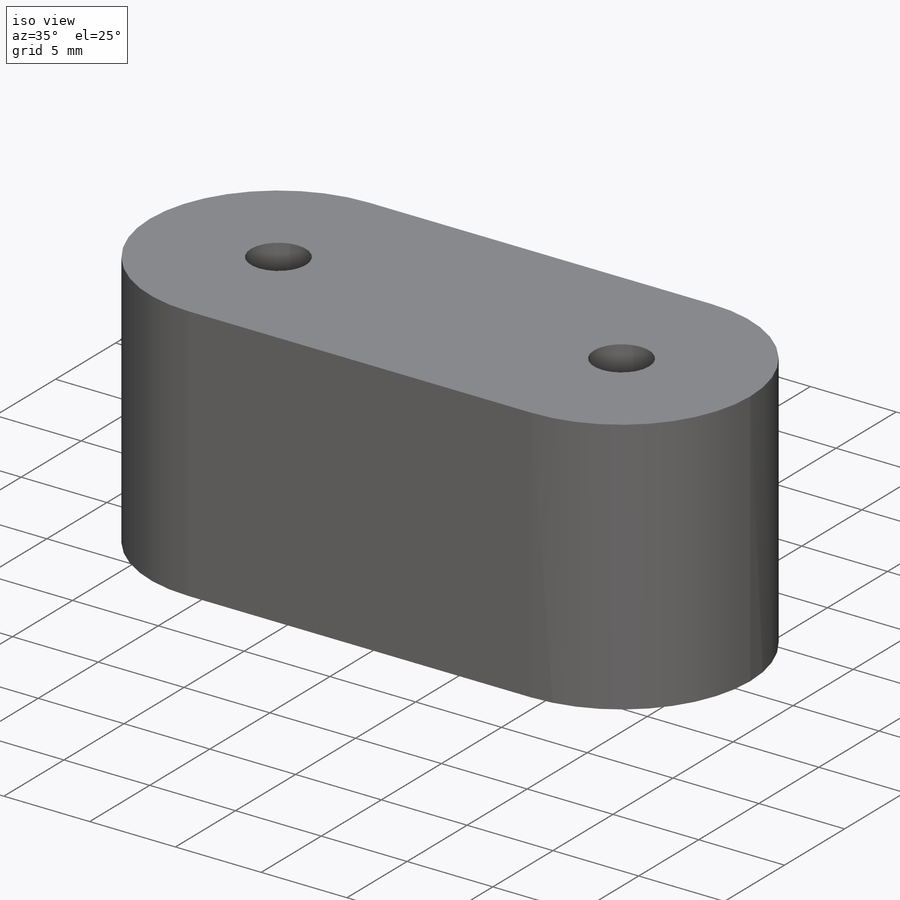
[diagram: iso view]
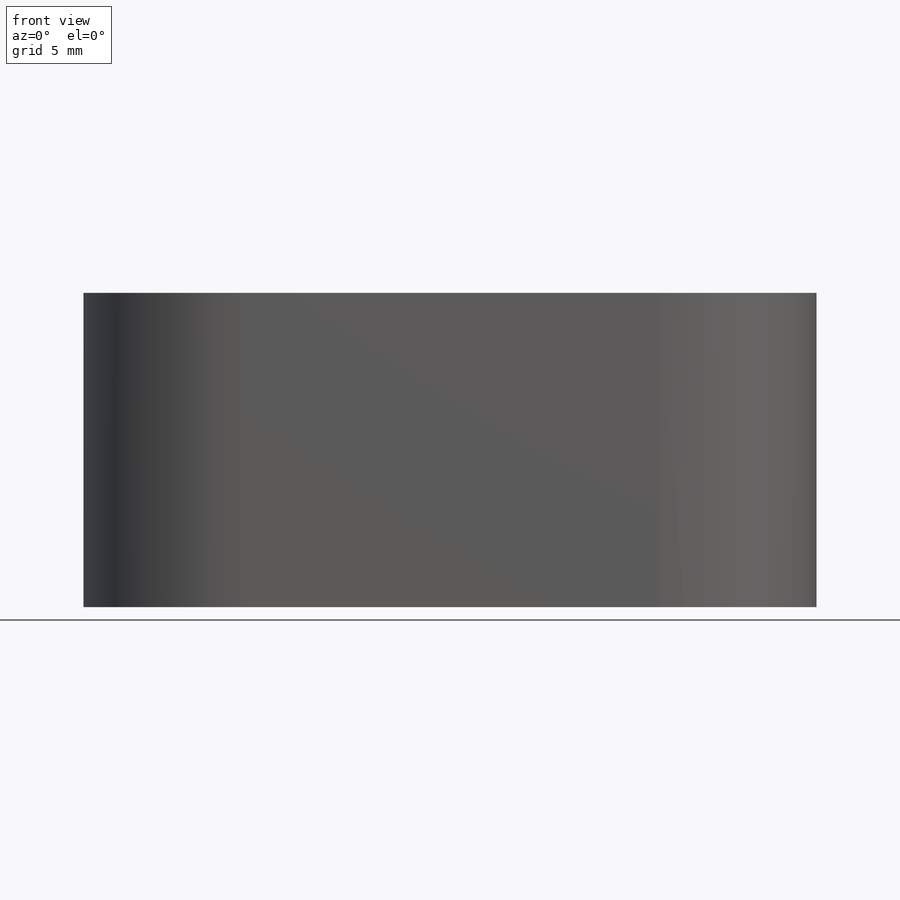
[diagram: front view]
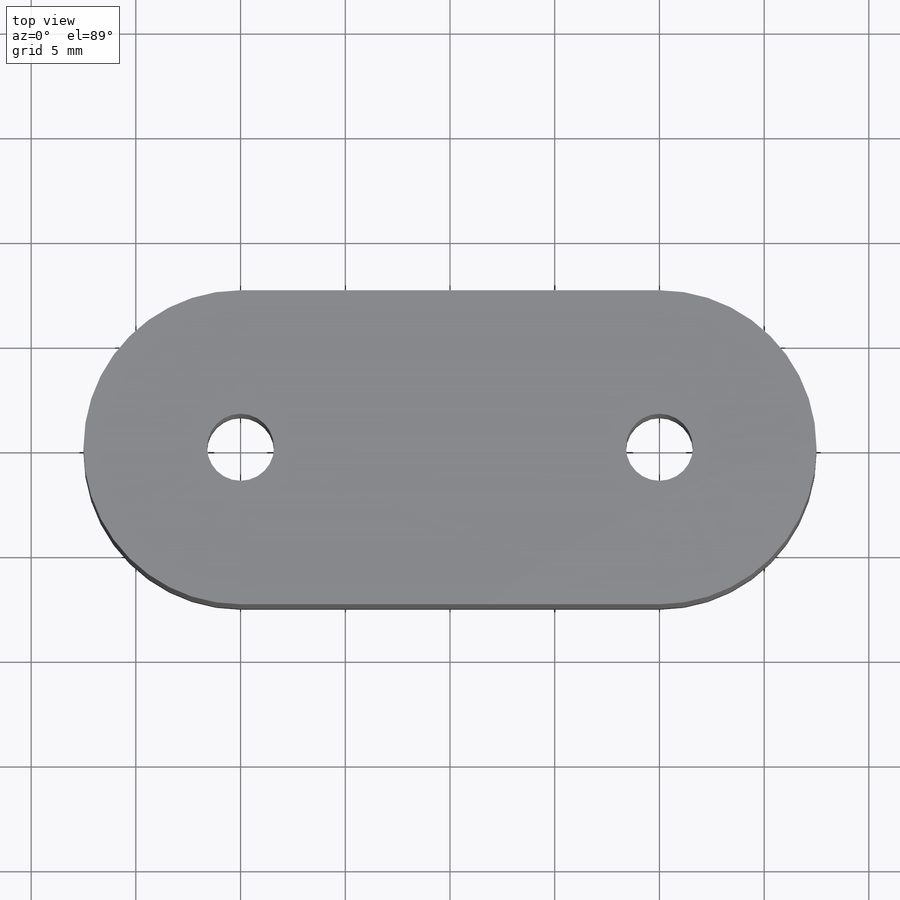
[diagram: top view]
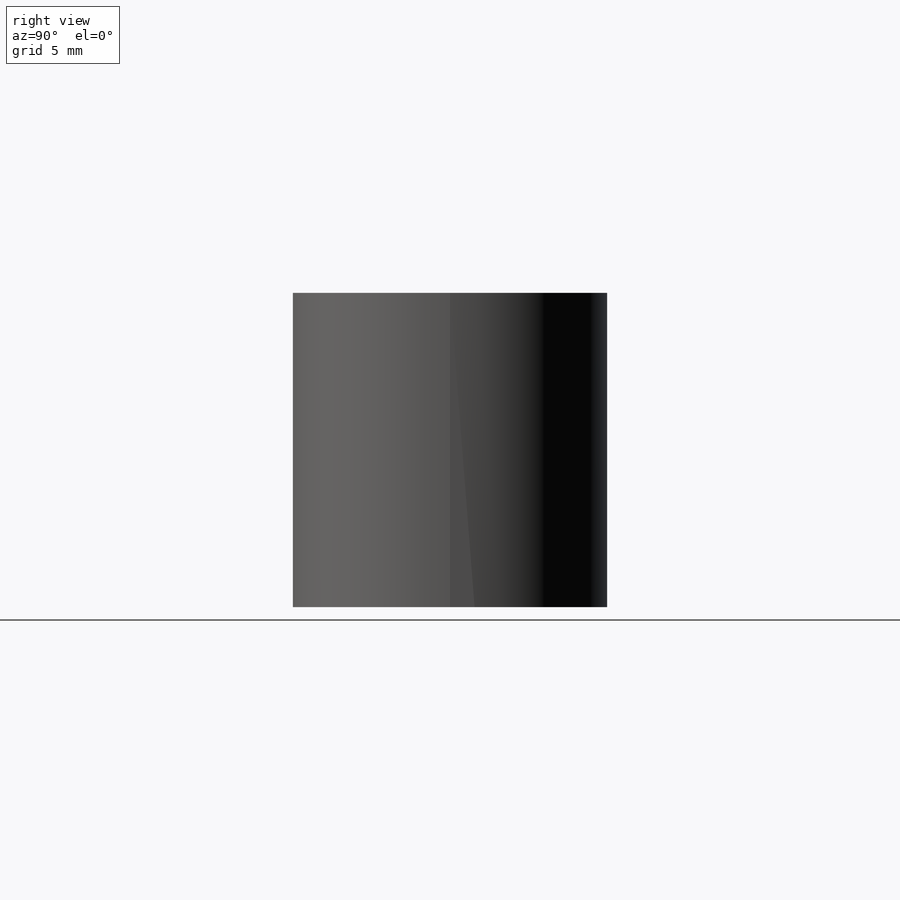
[diagram: right view]
SOLIDWORKS PART (.sldprt)
format: sldprt  version: not decoded by parser v0  size: 189,440 bytes
history: native  units: mm
features: sketch x4, material x1, extrude x1, hole x1, fillet x1, cut_extrude x1 (+12 scaffold rows collapsed)
feature tree (21):
  scaffold x12  (default folders/planes/origin — collapsed)
  material  "Material <not specified>"
  sketch  "Sketch1"  dims[D1=35.0mm D2=15.0mm]
  extrude  "Boss-Extrude1"  Depth=15mm
  hole  "M3 Clearance Hole1"  Diameter=3.2mm Depth=15mm
  sketch  "Sketch3"  dims[D1=10.0mm D2=10.0mm]
  sketch  "Sketch2"  dims[hole-wizard template sketch: 60 standard entries collapsed; hole parameters kept: c18.Thru Hole Depth=15.0mm]
  fillet  "Fillet1"  Radius=7.5mm
  sketch  "Sketch4"  dims[D1=5.5mm D2=5.5mm]
  cut_extrude  "Cut-Extrude1"  Depth=2.5mm
decode coverage: 8 of 8 modeling features carry decoded parameters
note: ~ marks probable driven/reference dimensions
note: suppression state not decoded; provenance and decode notes live in map.json
